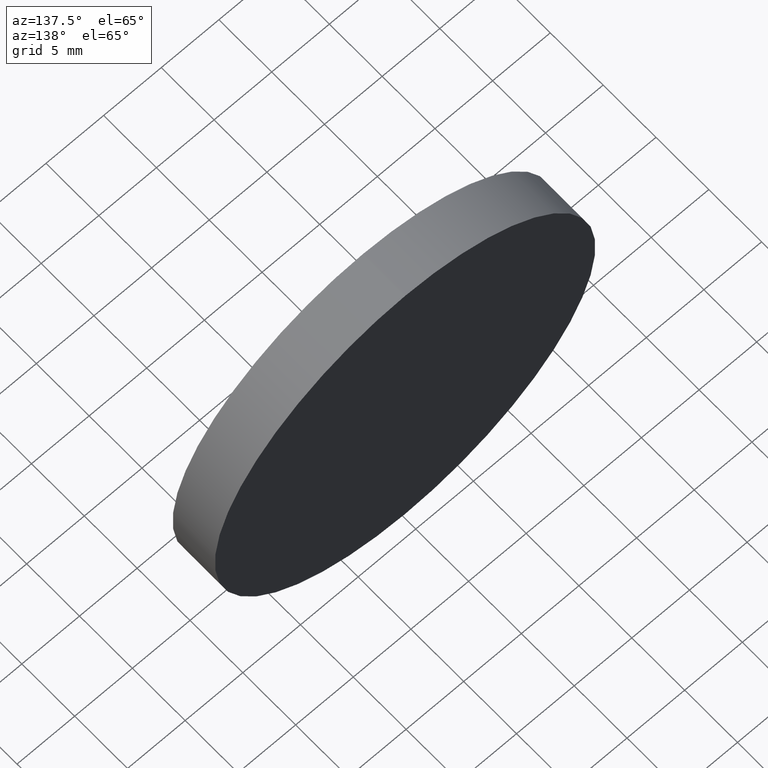
[diagram: clean part render]
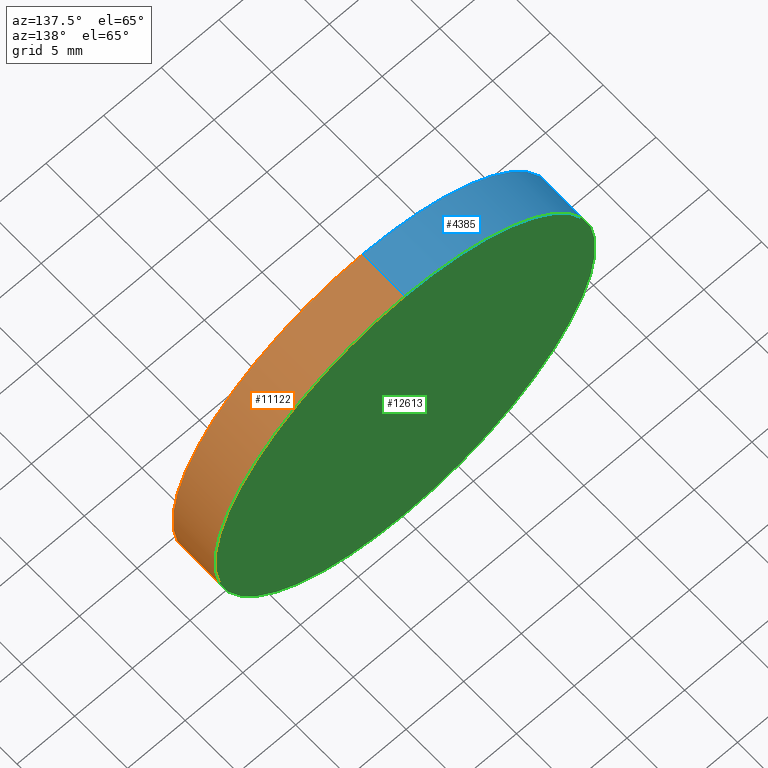
[diagram: same view with three faces highlighted in distinct colors, each labeled with its STEP entity id]
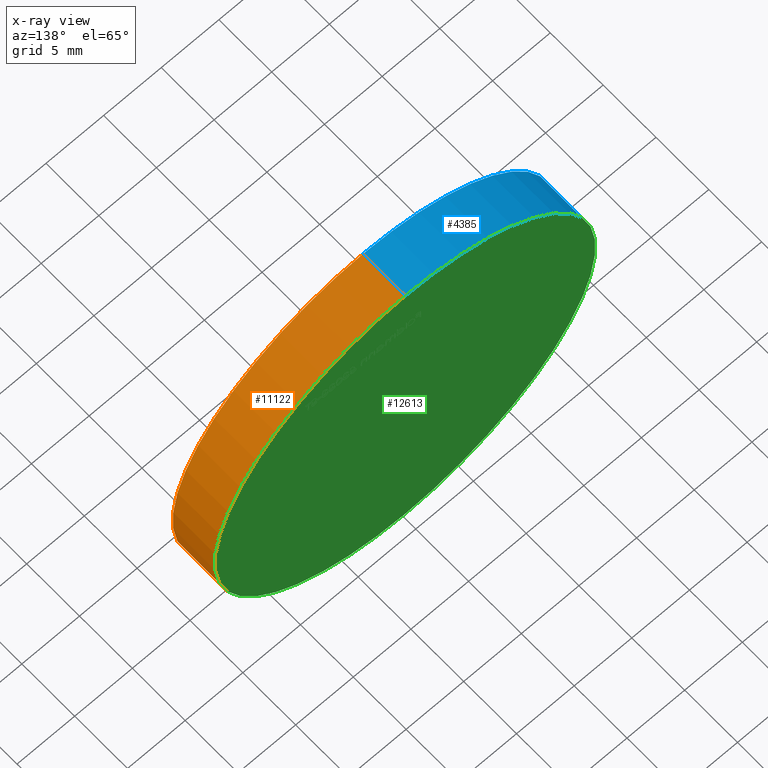
[diagram: x-ray of the same camera — body ghosted, the three highlighted faces saturated]
A machine part, auxiliary view with three faces highlighted in distinct colors.
The next image is the same camera in x-ray (body ghosted, the three faces saturated) — at least one of them is partly hidden behind the body in this view.
Their STEP definitions:

[orange] entity #11122 — the highlighted cylindrical surface (partial cylindrical patch) has radius 16.5 mm, axis along (-0, -1, -0).
#41 = CYLINDRICAL_SURFACE ( 'NONE', #3300, 16.50000000000000000 ) ;
#230 = DIRECTION ( 'NONE',  ( 0.0000000000000000000, 1.000000000000000000, 0.0000000000000000000 ) ) ;
#308 = ORIENTED_EDGE ( 'NONE', *, *, #12068, .F. ) ;
#792 = EDGE_CURVE ( 'NONE', #4992, #6562, #11136, .T. ) ;
#1004 = CARTESIAN_POINT ( 'NONE',  ( 0.0000000000000000000, 4.000000000000000000, 0.0000000000000000000 ) ) ;
#1234 = AXIS2_PLACEMENT_3D ( 'NONE', #4600, #12791, #2481 ) ;
#1249 = VERTEX_POINT ( 'NONE', #7958 ) ;
#1458 = VERTEX_POINT ( 'NONE', #10636 ) ;
#1782 = CIRCLE ( 'NONE', #1234, 16.50000000000000000 ) ;
#2360 = DIRECTION ( 'NONE',  ( -0.0000000000000000000, -1.000000000000000000, -0.0000000000000000000 ) ) ;
#2366 = DIRECTION ( 'NONE',  ( 0.0000000000000000000, 0.0000000000000000000, 1.000000000000000000 ) ) ;
#2481 = DIRECTION ( 'NONE',  ( 0.0000000000000000000, 0.0000000000000000000, 1.000000000000000000 ) ) ;
#2870 = DIRECTION ( 'NONE',  ( -0.0000000000000000000, -1.000000000000000000, -0.0000000000000000000 ) ) ;
#3300 = AXIS2_PLACEMENT_3D ( 'NONE', #1004, #12162, #7212 ) ;
#3856 = LINE ( 'NONE', #5466, #11422 ) ;
#4600 = CARTESIAN_POINT ( 'NONE',  ( 0.0000000000000000000, 0.0000000000000000000, 0.0000000000000000000 ) ) ;
#4679 = AXIS2_PLACEMENT_3D ( 'NONE', #10494, #230, #2366 ) ;
#4992 = VERTEX_POINT ( 'NONE', #7482 ) ;
#5466 = CARTESIAN_POINT ( 'NONE',  ( 0.0000000000000000000, 4.000000000000000000, -16.50000000000000000 ) ) ;
#6562 = VERTEX_POINT ( 'NONE', #11438 ) ;
#6611 = ORIENTED_EDGE ( 'NONE', *, *, #792, .F. ) ;
#7212 = DIRECTION ( 'NONE',  ( 0.0000000000000000000, 0.0000000000000000000, -1.000000000000000000 ) ) ;
#7482 = CARTESIAN_POINT ( 'NONE',  ( 2.020667218593133100E-015, 4.000000000000000000, 16.50000000000000000 ) ) ;
#7881 = VECTOR ( 'NONE', #2870, 1000.000000000000000 ) ;
#7958 = CARTESIAN_POINT ( 'NONE',  ( 0.0000000000000000000, 0.0000000000000000000, -16.50000000000000000 ) ) ;
#8367 = ORIENTED_EDGE ( 'NONE', *, *, #13028, .T. ) ;
#9274 = ORIENTED_EDGE ( 'NONE', *, *, #10646, .T. ) ;
#9771 = EDGE_LOOP ( 'NONE', ( #6611, #8367, #9274, #308 ) ) ;
#10092 = CARTESIAN_POINT ( 'NONE',  ( 2.020667218593133100E-015, 4.000000000000000000, 16.50000000000000000 ) ) ;
#10494 = CARTESIAN_POINT ( 'NONE',  ( 0.0000000000000000000, 4.000000000000000000, 0.0000000000000000000 ) ) ;
#10636 = CARTESIAN_POINT ( 'NONE',  ( 2.020667218593133100E-015, 0.0000000000000000000, 16.50000000000000000 ) ) ;
#10646 = EDGE_CURVE ( 'NONE', #1458, #1249, #1782, .T. ) ;
#11122 = ADVANCED_FACE ( 'NONE', ( #12873 ), #41, .T. ) ;
#11136 = CIRCLE ( 'NONE', #4679, 16.50000000000000000 ) ;
#11422 = VECTOR ( 'NONE', #2360, 1000.000000000000000 ) ;
#11438 = CARTESIAN_POINT ( 'NONE',  ( 0.0000000000000000000, 4.000000000000000000, -16.50000000000000000 ) ) ;
#12068 = EDGE_CURVE ( 'NONE', #6562, #1249, #3856, .T. ) ;
#12162 = DIRECTION ( 'NONE',  ( -0.0000000000000000000, -1.000000000000000000, -0.0000000000000000000 ) ) ;
#12791 = DIRECTION ( 'NONE',  ( 0.0000000000000000000, 1.000000000000000000, 0.0000000000000000000 ) ) ;
#12873 = FACE_OUTER_BOUND ( 'NONE', #9771, .T. ) ;
#13027 = LINE ( 'NONE', #10092, #7881 ) ;
#13028 = EDGE_CURVE ( 'NONE', #4992, #1458, #13027, .T. ) ;

[blue] entity #4385 — the highlighted cylindrical surface (partial cylindrical patch) has radius 16.5 mm, axis along (-0, -1, -0).
#1249 = VERTEX_POINT ( 'NONE', #7958 ) ;
#1458 = VERTEX_POINT ( 'NONE', #10636 ) ;
#1493 = EDGE_LOOP ( 'NONE', ( #5900, #7785, #3335, #12810 ) ) ;
#1631 = EDGE_CURVE ( 'NONE', #1249, #1458, #7112, .T. ) ;
#2360 = DIRECTION ( 'NONE',  ( -0.0000000000000000000, -1.000000000000000000, -0.0000000000000000000 ) ) ;
#2870 = DIRECTION ( 'NONE',  ( -0.0000000000000000000, -1.000000000000000000, -0.0000000000000000000 ) ) ;
#3335 = ORIENTED_EDGE ( 'NONE', *, *, #12068, .T. ) ;
#3618 = CARTESIAN_POINT ( 'NONE',  ( 0.0000000000000000000, 0.0000000000000000000, 0.0000000000000000000 ) ) ;
#3856 = LINE ( 'NONE', #5466, #11422 ) ;
#4385 = ADVANCED_FACE ( 'NONE', ( #11872 ), #12996, .T. ) ;
#4459 = CARTESIAN_POINT ( 'NONE',  ( 0.0000000000000000000, 4.000000000000000000, 0.0000000000000000000 ) ) ;
#4584 = AXIS2_PLACEMENT_3D ( 'NONE', #3618, #12942, #11909 ) ;
#4992 = VERTEX_POINT ( 'NONE', #7482 ) ;
#5027 = EDGE_CURVE ( 'NONE', #6562, #4992, #12196, .T. ) ;
#5466 = CARTESIAN_POINT ( 'NONE',  ( 0.0000000000000000000, 4.000000000000000000, -16.50000000000000000 ) ) ;
#5491 = DIRECTION ( 'NONE',  ( 0.0000000000000000000, 1.000000000000000000, 0.0000000000000000000 ) ) ;
#5740 = DIRECTION ( 'NONE',  ( 0.0000000000000000000, 0.0000000000000000000, -1.000000000000000000 ) ) ;
#5900 = ORIENTED_EDGE ( 'NONE', *, *, #13028, .F. ) ;
#6562 = VERTEX_POINT ( 'NONE', #11438 ) ;
#6603 = DIRECTION ( 'NONE',  ( -0.0000000000000000000, -1.000000000000000000, -0.0000000000000000000 ) ) ;
#6609 = DIRECTION ( 'NONE',  ( 0.0000000000000000000, 0.0000000000000000000, 1.000000000000000000 ) ) ;
#7112 = CIRCLE ( 'NONE', #4584, 16.50000000000000000 ) ;
#7482 = CARTESIAN_POINT ( 'NONE',  ( 2.020667218593133100E-015, 4.000000000000000000, 16.50000000000000000 ) ) ;
#7617 = AXIS2_PLACEMENT_3D ( 'NONE', #4459, #5491, #6609 ) ;
#7785 = ORIENTED_EDGE ( 'NONE', *, *, #5027, .F. ) ;
#7790 = AXIS2_PLACEMENT_3D ( 'NONE', #11743, #6603, #5740 ) ;
#7881 = VECTOR ( 'NONE', #2870, 1000.000000000000000 ) ;
#7958 = CARTESIAN_POINT ( 'NONE',  ( 0.0000000000000000000, 0.0000000000000000000, -16.50000000000000000 ) ) ;
#10092 = CARTESIAN_POINT ( 'NONE',  ( 2.020667218593133100E-015, 4.000000000000000000, 16.50000000000000000 ) ) ;
#10636 = CARTESIAN_POINT ( 'NONE',  ( 2.020667218593133100E-015, 0.0000000000000000000, 16.50000000000000000 ) ) ;
#11422 = VECTOR ( 'NONE', #2360, 1000.000000000000000 ) ;
#11438 = CARTESIAN_POINT ( 'NONE',  ( 0.0000000000000000000, 4.000000000000000000, -16.50000000000000000 ) ) ;
#11743 = CARTESIAN_POINT ( 'NONE',  ( 0.0000000000000000000, 4.000000000000000000, 0.0000000000000000000 ) ) ;
#11872 = FACE_OUTER_BOUND ( 'NONE', #1493, .T. ) ;
#11909 = DIRECTION ( 'NONE',  ( 0.0000000000000000000, 0.0000000000000000000, 1.000000000000000000 ) ) ;
#12068 = EDGE_CURVE ( 'NONE', #6562, #1249, #3856, .T. ) ;
#12196 = CIRCLE ( 'NONE', #7617, 16.50000000000000000 ) ;
#12810 = ORIENTED_EDGE ( 'NONE', *, *, #1631, .T. ) ;
#12942 = DIRECTION ( 'NONE',  ( 0.0000000000000000000, 1.000000000000000000, 0.0000000000000000000 ) ) ;
#12996 = CYLINDRICAL_SURFACE ( 'NONE', #7790, 16.50000000000000000 ) ;
#13027 = LINE ( 'NONE', #10092, #7881 ) ;
#13028 = EDGE_CURVE ( 'NONE', #4992, #1458, #13027, .T. ) ;

[green] entity #12613 — the highlighted planar face has unit normal (0, 1, 0).
#230 = DIRECTION ( 'NONE',  ( 0.0000000000000000000, 1.000000000000000000, 0.0000000000000000000 ) ) ;
#590 = CARTESIAN_POINT ( 'NONE',  ( 0.0000000000000000000, 4.000000000000000000, 0.0000000000000000000 ) ) ;
#792 = EDGE_CURVE ( 'NONE', #4992, #6562, #11136, .T. ) ;
#2366 = DIRECTION ( 'NONE',  ( 0.0000000000000000000, 0.0000000000000000000, 1.000000000000000000 ) ) ;
#3554 = ORIENTED_EDGE ( 'NONE', *, *, #792, .T. ) ;
#3694 = DIRECTION ( 'NONE',  ( 0.0000000000000000000, 1.000000000000000000, 0.0000000000000000000 ) ) ;
#4137 = ORIENTED_EDGE ( 'NONE', *, *, #5027, .T. ) ;
#4459 = CARTESIAN_POINT ( 'NONE',  ( 0.0000000000000000000, 4.000000000000000000, 0.0000000000000000000 ) ) ;
#4679 = AXIS2_PLACEMENT_3D ( 'NONE', #10494, #230, #2366 ) ;
#4746 = DIRECTION ( 'NONE',  ( 0.0000000000000000000, -0.0000000000000000000, 1.000000000000000000 ) ) ;
#4992 = VERTEX_POINT ( 'NONE', #7482 ) ;
#5018 = EDGE_LOOP ( 'NONE', ( #4137, #3554 ) ) ;
#5027 = EDGE_CURVE ( 'NONE', #6562, #4992, #12196, .T. ) ;
#5491 = DIRECTION ( 'NONE',  ( 0.0000000000000000000, 1.000000000000000000, 0.0000000000000000000 ) ) ;
#6562 = VERTEX_POINT ( 'NONE', #11438 ) ;
#6609 = DIRECTION ( 'NONE',  ( 0.0000000000000000000, 0.0000000000000000000, 1.000000000000000000 ) ) ;
#6756 = PLANE ( 'NONE',  #9845 ) ;
#7482 = CARTESIAN_POINT ( 'NONE',  ( 2.020667218593133100E-015, 4.000000000000000000, 16.50000000000000000 ) ) ;
#7617 = AXIS2_PLACEMENT_3D ( 'NONE', #4459, #5491, #6609 ) ;
#9845 = AXIS2_PLACEMENT_3D ( 'NONE', #590, #3694, #4746 ) ;
#10123 = FACE_OUTER_BOUND ( 'NONE', #5018, .T. ) ;
#10494 = CARTESIAN_POINT ( 'NONE',  ( 0.0000000000000000000, 4.000000000000000000, 0.0000000000000000000 ) ) ;
#11136 = CIRCLE ( 'NONE', #4679, 16.50000000000000000 ) ;
#11438 = CARTESIAN_POINT ( 'NONE',  ( 0.0000000000000000000, 4.000000000000000000, -16.50000000000000000 ) ) ;
#12196 = CIRCLE ( 'NONE', #7617, 16.50000000000000000 ) ;
#12613 = ADVANCED_FACE ( 'NONE', ( #10123 ), #6756, .T. ) ;